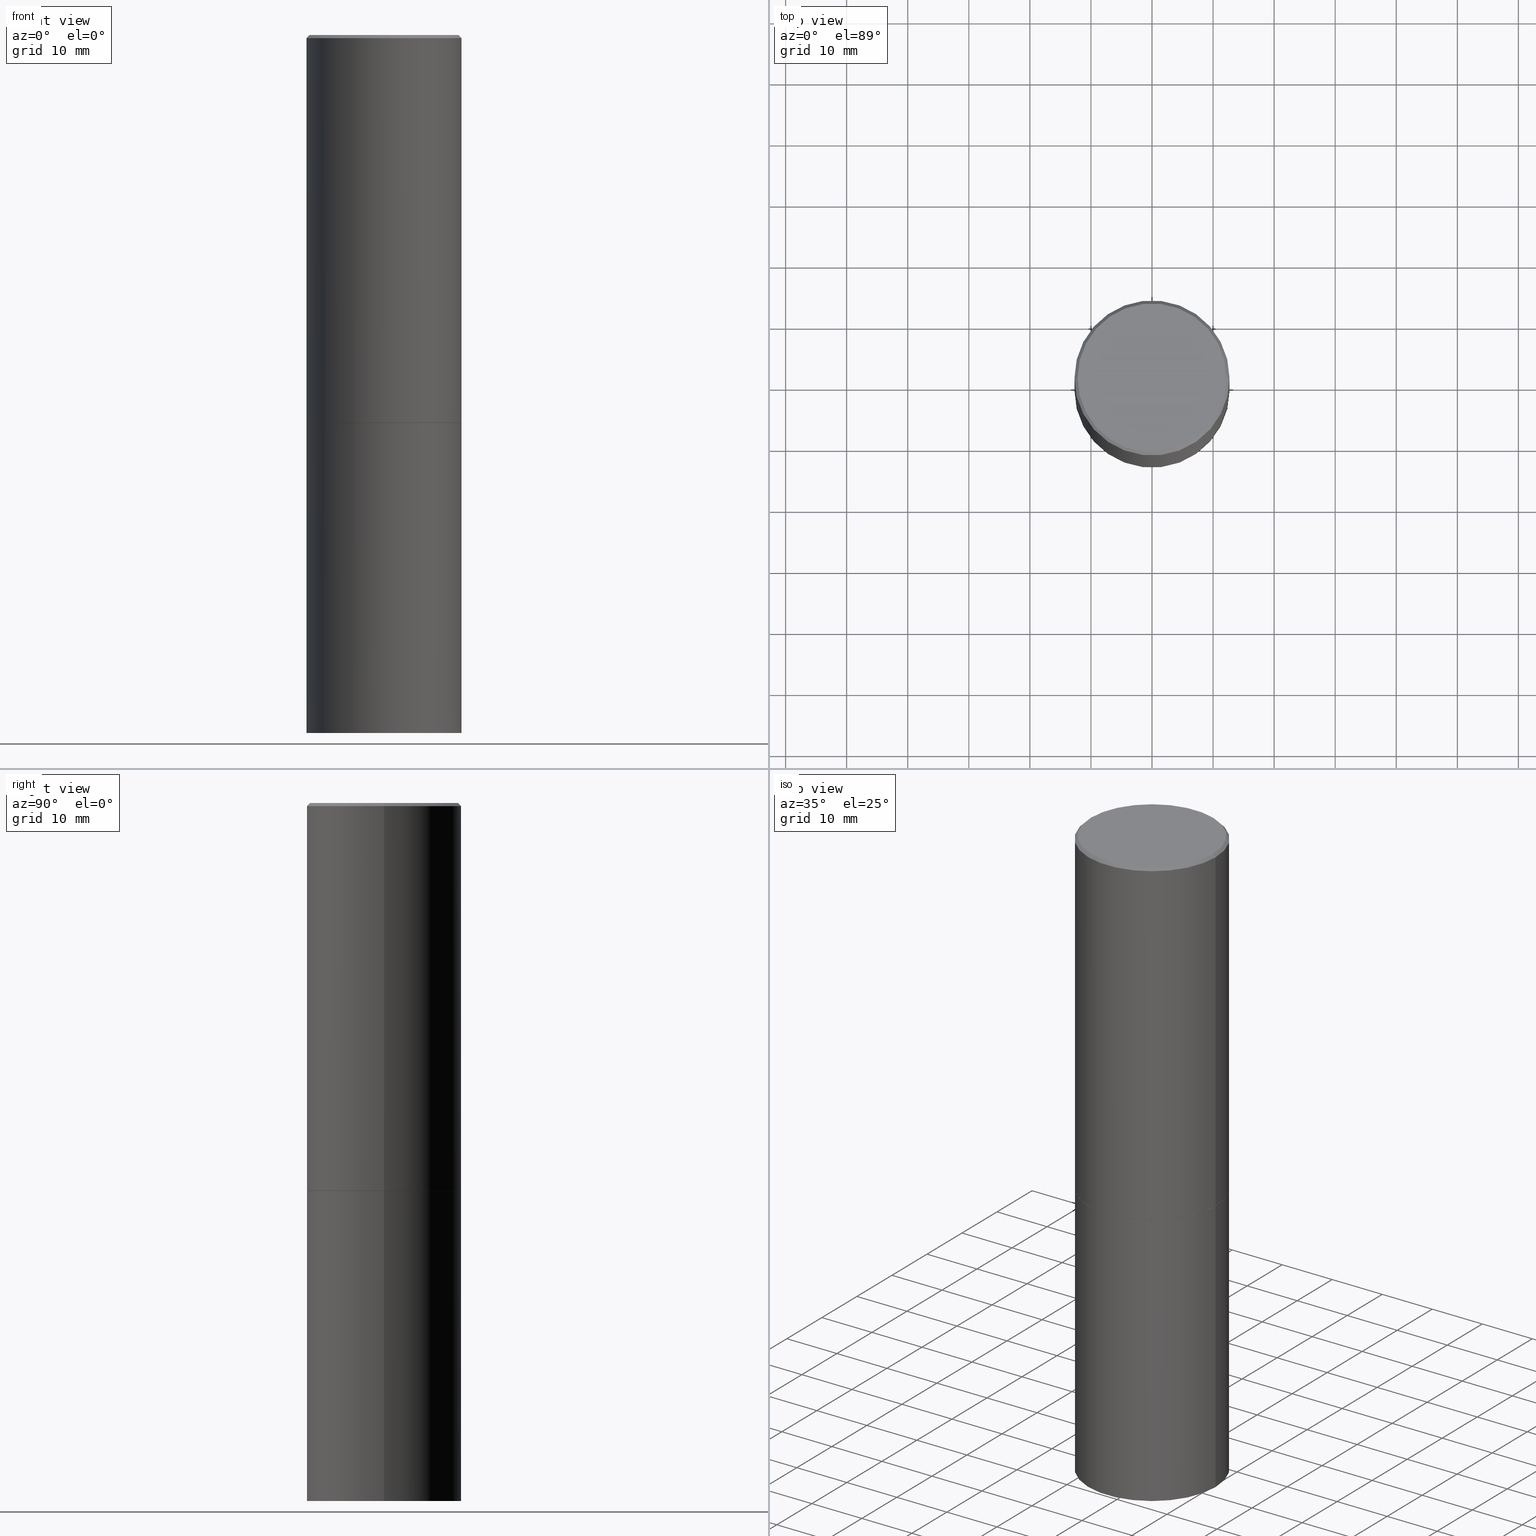
[diagram: canonical four-view strip — front | top / right | iso, engineering-drawing reading convention]
A machine part, canonical four-view strip (front | top / right | iso — engineering-drawing reading convention). The complete STEP part file that produces these views, byte-faithful:
ISO-10303-21;
HEADER;
FILE_DESCRIPTION (( 'STEP AP203' ),
    '1' );
FILE_NAME ('32048.STEP',
    '2024-02-27T14:39:32',
    ( '' ),
    ( '' ),
    'SwSTEP 2.0',
    'SolidWorks 2023',
    '' );
FILE_SCHEMA (( 'CONFIG_CONTROL_DESIGN' ));
ENDSEC;

DATA;
#1 = EDGE_CURVE ( 'NONE', #30, #9, #127, .T. ) ;
#2 = DIRECTION ( 'NONE',  ( 1.000000000000000000, -6.982962677686266711E-15, 4.876176775795935793E-29 ) ) ;
#3 = CARTESIAN_POINT ( 'NONE',  ( 3.491481338843194098E-15, 0.4999999999999912292, -2.500000000000001776 ) ) ;
#4 = AXIS2_PLACEMENT_3D ( 'NONE', #29, #66, #61 ) ;
#5 = DIRECTION ( 'NONE',  ( 0.7071067811866199593, -2.468850131083015945E-15, 0.7071067811864750752 ) ) ;
#6 = PRODUCT_DEFINITION_SHAPE ( 'NONE', 'NONE',  #199 ) ;
#7 = CARTESIAN_POINT ( 'NONE',  ( -0.5000000000000000000, -8.667471007150509990E-15, -2.500000000000000000 ) ) ;
#8 = PERSON_AND_ORGANIZATION_ROLE ( 'design_owner' ) ;
#9 = VERTEX_POINT ( 'NONE', #233 ) ;
#10 = COORDINATED_UNIVERSAL_TIME_OFFSET ( 5, 0, .BEHIND. ) ;
#11 = CIRCLE ( 'NONE', #154, 0.5000000000000000000 ) ;
#12 = EDGE_LOOP ( 'NONE', ( #17, #357 ) ) ;
#13 = PERSON_AND_ORGANIZATION ( #36, #348 ) ;
#14 = CARTESIAN_POINT ( 'NONE',  ( 6.113672015462842613E-29, -8.728703347107864943E-15, -2.500000000000000000 ) ) ;
#15 = ORIENTED_EDGE ( 'NONE', *, *, #219, .T. ) ;
#16 = CARTESIAN_POINT ( 'NONE',  ( -0.4799999999999996492, 3.386736898677836436E-15, 1.280553747027767124E-17 ) ) ;
#17 = ORIENTED_EDGE ( 'NONE', *, *, #171, .T. ) ;
#18 = AXIS2_PLACEMENT_3D ( 'NONE', #194, #113, #65 ) ;
#19 = CARTESIAN_POINT ( 'NONE',  ( 6.111226546656657010E-29, -8.725211865769021935E-15, -2.499000000000000110 ) ) ;
#20 = CARTESIAN_POINT ( 'NONE',  ( 0.5000000000000000000, -1.222018468595099830E-14, -2.500000000000000000 ) ) ;
#21 = EDGE_LOOP ( 'NONE', ( #283, #89 ) ) ;
#22 = CARTESIAN_POINT ( 'NONE',  ( -0.4989999999999999991, -5.183095095664965021E-15, -2.500000000000000000 ) ) ;
#23 = EDGE_CURVE ( 'NONE', #9, #45, #328, .T. ) ;
#24 = CC_DESIGN_APPROVAL ( #289, ( #199 ) ) ;
#25 = DIRECTION ( 'NONE',  ( -2.445468806185136877E-29, 3.491481338843145188E-15, 1.000000000000000000 ) ) ;
#26 = DIRECTION ( 'NONE',  ( 1.000000000000000000, 0.000000000000000000, 0.000000000000000000 ) ) ;
#27 = DIRECTION ( 'NONE',  ( -2.445468806185136597E-29, 3.491481338843145583E-15, 1.000000000000000000 ) ) ;
#28 = CC_DESIGN_PERSON_AND_ORGANIZATION_ASSIGNMENT ( #201, #350, ( #280 ) ) ;
#29 = CARTESIAN_POINT ( 'NONE',  ( 6.113672015462842613E-29, -8.728703347107864943E-15, -2.500000000000000000 ) ) ;
#30 = VERTEX_POINT ( 'NONE', #207 ) ;
#31 = CC_DESIGN_PERSON_AND_ORGANIZATION_ASSIGNMENT ( #312, #122, ( #199 ) ) ;
#32 = VECTOR ( 'NONE', #107, 39.37007874015748143 ) ;
#33 = CONICAL_SURFACE ( 'NONE', #99, 0.4999999999999996669, 0.7853981633974452814 ) ;
#34 = PERSON_AND_ORGANIZATION ( #36, #348 ) ;
#35 = LOCAL_TIME ( 9, 39, 32.00000000000000000, #256 ) ;
#36 = PERSON ( 'UNSPECIFIED', 'UNSPECIFIED', 'UNSPECIFIED', ('UNSPECIFIED'), ('UNSPECIFIED'), ('UNSPECIFIED') ) ;
#37 = CARTESIAN_POINT ( 'NONE',  ( 0.4989999999999999991, -1.221320172327331228E-14, -2.500000000000000000 ) ) ;
#38 = APPROVAL_ROLE ( '' ) ;
#39 = EDGE_CURVE ( 'NONE', #137, #102, #69, .T. ) ;
#40 = EDGE_LOOP ( 'NONE', ( #150, #68, #359, #82 ) ) ;
#41 = PERSON_AND_ORGANIZATION ( #36, #348 ) ;
#42 = EDGE_CURVE ( 'NONE', #102, #30, #74, .T. ) ;
#43 = EDGE_CURVE ( 'NONE', #30, #130, #11, .T. ) ;
#44 = ORIENTED_EDGE ( 'NONE', *, *, #277, .T. ) ;
#45 = VERTEX_POINT ( 'NONE', #235 ) ;
#46 = COORDINATED_UNIVERSAL_TIME_OFFSET ( 5, 0, .BEHIND. ) ;
#47 = AXIS2_PLACEMENT_3D ( 'NONE', #227, #314, #229 ) ;
#48 = CARTESIAN_POINT ( 'NONE',  ( 0.000000000000000000, 0.000000000000000000, 0.000000000000000000 ) ) ;
#49 = APPROVAL_ROLE ( '' ) ;
#50 = ORIENTED_EDGE ( 'NONE', *, *, #171, .F. ) ;
#51 = DIRECTION ( 'NONE',  ( -2.445468806185136597E-29, 3.491481338843145583E-15, 1.000000000000000000 ) ) ;
#52 = VERTEX_POINT ( 'NONE', #7 ) ;
#53 = UNCERTAINTY_MEASURE_WITH_UNIT (LENGTH_MEASURE( 1.000000000000000082E-05 ), #249, 'distance_accuracy_value', 'NONE');
#54 = DIRECTION ( 'NONE',  ( -1.000000000000000000, 6.982962677686266711E-15, 0.000000000000000000 ) ) ;
#55 = EDGE_LOOP ( 'NONE', ( #242, #293 ) ) ;
#56 = AXIS2_PLACEMENT_3D ( 'NONE', #170, #173, #175 ) ;
#57 = FACE_OUTER_BOUND ( 'NONE', #200, .T. ) ;
#58 = ORIENTED_EDGE ( 'NONE', *, *, #277, .F. ) ;
#59 = DIRECTION ( 'NONE',  ( 2.445468806185136597E-29, -3.491481338843145583E-15, -1.000000000000000000 ) ) ;
#60 = EDGE_CURVE ( 'NONE', #130, #45, #278, .T. ) ;
#61 = DIRECTION ( 'NONE',  ( 1.000000000000000000, -6.982962677686269077E-15, 0.000000000000000000 ) ) ;
#62 = ADVANCED_FACE ( 'NONE', ( #124 ), #261, .T. ) ;
#63 = FACE_OUTER_BOUND ( 'NONE', #112, .T. ) ;
#64 = ADVANCED_BREP_SHAPE_REPRESENTATION ( '32048', ( #307, #85, #342 ), #355 ) ;
#65 = DIRECTION ( 'NONE',  ( -1.000000000000000000, 6.982962677686265922E-15, -4.876176775795935793E-29 ) ) ;
#66 = DIRECTION ( 'NONE',  ( -2.445468806185136597E-29, 3.491481338843145583E-15, 1.000000000000000000 ) ) ;
#67 = PRODUCT ( '32048', '32048', '', ( #337 ) ) ;
#68 = ORIENTED_EDGE ( 'NONE', *, *, #123, .T. ) ;
#69 = CIRCLE ( 'NONE', #115, 0.4989999999999999991 ) ;
#70 = CIRCLE ( 'NONE', #232, 0.5000000000000000000 ) ;
#71 = DIRECTION ( 'NONE',  ( 2.438088387897960049E-29, -3.491481338843145188E-15, -1.000000000000000000 ) ) ;
#72 = COORDINATED_UNIVERSAL_TIME_OFFSET ( 5, 0, .BEHIND. ) ;
#73 = CARTESIAN_POINT ( 'NONE',  ( 1.100460962783311469E-28, -1.571166602479415690E-14, -4.500000000000000000 ) ) ;
#74 = LINE ( 'NONE', #37, #204 ) ;
#75 = CALENDAR_DATE ( 2024, 27, 2 ) ;
#76 = DIRECTION ( 'NONE',  ( -2.445468806185136597E-29, 3.491481338843145583E-15, 1.000000000000000000 ) ) ;
#77 = APPROVAL_DATE_TIME ( #149, #263 ) ;
#78 = CIRCLE ( 'NONE', #287, 0.5000000000000000000 ) ;
#79 = ORIENTED_EDGE ( 'NONE', *, *, #276, .F. ) ;
#80 = DIRECTION ( 'NONE',  ( 2.445468806185136597E-29, -3.491481338843145583E-15, -1.000000000000000000 ) ) ;
#81 = DIRECTION ( 'NONE',  ( -2.438088387897960049E-29, 3.491481338843145188E-15, 1.000000000000000000 ) ) ;
#82 = ORIENTED_EDGE ( 'NONE', *, *, #321, .F. ) ;
#83 = CARTESIAN_POINT ( 'NONE',  ( 0.000000000000000000, 0.000000000000000000, 0.000000000000000000 ) ) ;
#84 = DIRECTION ( 'NONE',  ( -2.445468806185136597E-29, 3.491481338843145583E-15, 1.000000000000000000 ) ) ;
#85 = MANIFOLD_SOLID_BREP ( 'Body-Move/Copy2[2]', #217 ) ;
#86 = AXIS2_PLACEMENT_3D ( 'NONE', #273, #27, #274 ) ;
#87 = ADVANCED_FACE ( 'NONE', ( #251 ), #94, .F. ) ;
#88 = FACE_OUTER_BOUND ( 'NONE', #255, .T. ) ;
#89 = ORIENTED_EDGE ( 'NONE', *, *, #109, .F. ) ;
#90 = DIRECTION ( 'NONE',  ( -2.445468806185136597E-29, 3.491481338843145583E-15, 1.000000000000000000 ) ) ;
#91 = FACE_OUTER_BOUND ( 'NONE', #336, .T. ) ;
#92 = LOCAL_TIME ( 9, 39, 32.00000000000000000, #46 ) ;
#93 = ORIENTED_EDGE ( 'NONE', *, *, #248, .F. ) ;
#94 = PLANE ( 'NONE',  #306 ) ;
#95 = DATE_AND_TIME ( #228, #272 ) ;
#96 = ORIENTED_EDGE ( 'NONE', *, *, #42, .F. ) ;
#97 = COORDINATED_UNIVERSAL_TIME_OFFSET ( 5, 0, .BEHIND. ) ;
#98 = AXIS2_PLACEMENT_3D ( 'NONE', #14, #81, #187 ) ;
#99 = AXIS2_PLACEMENT_3D ( 'NONE', #166, #80, #54 ) ;
#100 = CARTESIAN_POINT ( 'NONE',  ( -3.131554243005659264E-46, 4.471029511141341874E-32, 1.280553747030123384E-17 ) ) ;
#101 = CC_DESIGN_PERSON_AND_ORGANIZATION_ASSIGNMENT ( #41, #234, ( #225 ) ) ;
#102 = VERTEX_POINT ( 'NONE', #311 ) ;
#103 = DIRECTION ( 'NONE',  ( -0.7071067811865453523, 2.468850131082234184E-15, -0.7071067811865496822 ) ) ;
#104 = DIRECTION ( 'NONE',  ( 1.000000000000000000, -6.982962677686265133E-15, 0.000000000000000000 ) ) ;
#105 = CONICAL_SURFACE ( 'NONE', #147, 0.4999999999999996669, 0.7853981633974452814 ) ;
#106 = EDGE_LOOP ( 'NONE', ( #202, #258 ) ) ;
#107 = DIRECTION ( 'NONE',  ( -2.445468806185136877E-29, 3.491481338843145188E-15, 1.000000000000000000 ) ) ;
#108 = CARTESIAN_POINT ( 'NONE',  ( -0.5000000000000000000, -8.667471007150509990E-15, -4.500000000000000000 ) ) ;
#109 = EDGE_CURVE ( 'NONE', #246, #214, #111, .T. ) ;
#110 = DIRECTION ( 'NONE',  ( 1.000000000000000000, -6.982962677686266711E-15, 0.000000000000000000 ) ) ;
#111 = CIRCLE ( 'NONE', #341, 0.5000000000000000000 ) ;
#112 = EDGE_LOOP ( 'NONE', ( #79, #114, #323, #93 ) ) ;
#113 = DIRECTION ( 'NONE',  ( 2.438088387897960049E-29, -3.491481338843145188E-15, -1.000000000000000000 ) ) ;
#114 = ORIENTED_EDGE ( 'NONE', *, *, #39, .T. ) ;
#115 = AXIS2_PLACEMENT_3D ( 'NONE', #176, #316, #279 ) ;
#116 = CC_DESIGN_APPROVAL ( #140, ( #280 ) ) ;
#117 =( NAMED_UNIT ( * ) PLANE_ANGLE_UNIT ( ) SI_UNIT ( $, .RADIAN. ) );
#118 = EDGE_CURVE ( 'NONE', #148, #193, #354, .T. ) ;
#119 = APPROVAL_PERSON_ORGANIZATION ( #185, #140, #209 ) ;
#120 = DIRECTION ( 'NONE',  ( -2.445468806185136597E-29, 3.491481338843145583E-15, 1.000000000000000000 ) ) ;
#121 = DIRECTION ( 'NONE',  ( -2.445468806185136877E-29, 3.491481338843145188E-15, 1.000000000000000000 ) ) ;
#122 = PERSON_AND_ORGANIZATION_ROLE ( 'creator' ) ;
#123 = EDGE_CURVE ( 'NONE', #246, #52, #189, .T. ) ;
#124 = FACE_OUTER_BOUND ( 'NONE', #132, .T. ) ;
#125 = DATE_AND_TIME ( #310, #92 ) ;
#126 = ADVANCED_FACE ( 'NONE', ( #134 ), #192, .T. ) ;
#127 = LINE ( 'NONE', #309, #260 ) ;
#128 = CARTESIAN_POINT ( 'NONE',  ( 4.890937612370298557E-31, -6.982962677686327354E-17, -0.02000000000000010103 ) ) ;
#129 = FACE_OUTER_BOUND ( 'NONE', #55, .T. ) ;
#130 = VERTEX_POINT ( 'NONE', #317 ) ;
#131 = CARTESIAN_POINT ( 'NONE',  ( -3.131554243005659264E-46, 4.471029511141341874E-32, 1.280553747030123384E-17 ) ) ;
#132 = EDGE_LOOP ( 'NONE', ( #145, #332, #188, #198 ) ) ;
#133 = CARTESIAN_POINT ( 'NONE',  ( 0.5000000000000000000, -1.920314736363729025E-14, -4.500000000000000000 ) ) ;
#134 = FACE_OUTER_BOUND ( 'NONE', #40, .T. ) ;
#135 = DESIGN_CONTEXT ( 'detailed design', #224, 'design' ) ;
#136 = DIRECTION ( 'NONE',  ( -0.7071067811866199593, 7.493145998870616062E-15, 0.7071067811864750752 ) ) ;
#137 = VERTEX_POINT ( 'NONE', #237 ) ;
#138 = CIRCLE ( 'NONE', #4, 0.5000000000000000000 ) ;
#139 =( LENGTH_UNIT ( ) NAMED_UNIT ( * ) SI_UNIT ( $, .METRE. ) );
#140 = APPROVAL ( #259, 'UNSPECIFIED' ) ;
#141 = LENGTH_MEASURE_WITH_UNIT ( LENGTH_MEASURE( 0.02539999999999999897 ), #139 );
#142 = PLANE ( 'NONE',  #18 ) ;
#143 = CIRCLE ( 'NONE', #190, 0.4999999999999996669 ) ;
#144 = ADVANCED_FACE ( 'NONE', ( #216 ), #157, .T. ) ;
#145 = ORIENTED_EDGE ( 'NONE', *, *, #60, .F. ) ;
#146 = VECTOR ( 'NONE', #121, 39.37007874015748143 ) ;
#147 = AXIS2_PLACEMENT_3D ( 'NONE', #290, #59, #353 ) ;
#148 = VERTEX_POINT ( 'NONE', #326 ) ;
#149 = DATE_AND_TIME ( #230, #35 ) ;
#150 = ORIENTED_EDGE ( 'NONE', *, *, #344, .T. ) ;
#151 = PERSON_AND_ORGANIZATION ( #36, #348 ) ;
#152 = DIRECTION ( 'NONE',  ( -2.445468806185136877E-29, 3.491481338843145188E-15, 1.000000000000000000 ) ) ;
#153 = APPROVAL_DATE_TIME ( #95, #289 ) ;
#154 = AXIS2_PLACEMENT_3D ( 'NONE', #181, #120, #285 ) ;
#155 = CARTESIAN_POINT ( 'NONE',  ( -0.4999999999999998335, 3.552713678800499746E-15, -2.459467545127452330E-29 ) ) ;
#156 = EDGE_CURVE ( 'NONE', #193, #45, #298, .T. ) ;
#157 = CYLINDRICAL_SURFACE ( 'NONE', #168, 0.4999999999999998335 ) ;
#158 = CALENDAR_DATE ( 2024, 27, 2 ) ;
#159 = ORIENTED_EDGE ( 'NONE', *, *, #321, .T. ) ;
#160 = DIRECTION ( 'NONE',  ( -2.445468806185136597E-29, 3.491481338843145583E-15, 1.000000000000000000 ) ) ;
#161 = ORIENTED_EDGE ( 'NONE', *, *, #43, .T. ) ;
#162 = CARTESIAN_POINT ( 'NONE',  ( -0.5000000000000000000, 3.552713678800500929E-15, -2.459467545127452891E-29 ) ) ;
#163 = CIRCLE ( 'NONE', #250, 0.4799999999999996492 ) ;
#164 = CARTESIAN_POINT ( 'NONE',  ( 6.113672015462842613E-29, -8.728703347107864943E-15, -2.500000000000000000 ) ) ;
#165 = ORIENTED_EDGE ( 'NONE', *, *, #268, .T. ) ;
#166 = CARTESIAN_POINT ( 'NONE',  ( 4.890937612370298557E-31, -6.982962677686327354E-17, -0.02000000000000010103 ) ) ;
#167 = CYLINDRICAL_SURFACE ( 'NONE', #303, 0.5000000000000000000 ) ;
#168 = AXIS2_PLACEMENT_3D ( 'NONE', #244, #160, #215 ) ;
#169 = LINE ( 'NONE', #301, #222 ) ;
#170 = CARTESIAN_POINT ( 'NONE',  ( 1.100460962783311469E-28, -1.571166602479415690E-14, -4.500000000000000000 ) ) ;
#171 = EDGE_CURVE ( 'NONE', #193, #148, #163, .T. ) ;
#172 = ADVANCED_FACE ( 'NONE', ( #129 ), #262, .F. ) ;
#173 = DIRECTION ( 'NONE',  ( -2.445468806185136597E-29, 3.491481338843145583E-15, 1.000000000000000000 ) ) ;
#174 = VECTOR ( 'NONE', #136, 39.37007874015748143 ) ;
#175 = DIRECTION ( 'NONE',  ( 1.000000000000000000, -6.982962677686266711E-15, 0.000000000000000000 ) ) ;
#176 = CARTESIAN_POINT ( 'NONE',  ( 6.113672015462842613E-29, -8.728703347107864943E-15, -2.500000000000000000 ) ) ;
#177 = DIRECTION ( 'NONE',  ( -2.445468806185136597E-29, 3.491481338843145583E-15, 1.000000000000000000 ) ) ;
#178 = SECURITY_CLASSIFICATION_LEVEL ( 'unclassified' ) ;
#179 = APPROVAL_PERSON_ORGANIZATION ( #13, #289, #38 ) ;
#180 = DIRECTION ( 'NONE',  ( -2.445468806185136597E-29, 3.491481338843145583E-15, 1.000000000000000000 ) ) ;
#181 = CARTESIAN_POINT ( 'NONE',  ( 6.111226546656657010E-29, -8.725211865769021935E-15, -2.499000000000000110 ) ) ;
#182 = APPLICATION_PROTOCOL_DEFINITION ( 'international standard', 'config_control_design', 1994, #224 ) ;
#183 = AXIS2_PLACEMENT_3D ( 'NONE', #48, #76, #358 ) ;
#184 = DIRECTION ( 'NONE',  ( -1.000000000000000000, 6.982962677686265922E-15, -4.876176775795935793E-29 ) ) ;
#185 = PERSON_AND_ORGANIZATION ( #36, #348 ) ;
#186 = DIRECTION ( 'NONE',  ( 1.000000000000000000, -6.982962677686267499E-15, 4.876036955247132767E-29 ) ) ;
#187 = DIRECTION ( 'NONE',  ( 1.000000000000000000, -6.982962677686265922E-15, 4.876176775795935793E-29 ) ) ;
#188 = ORIENTED_EDGE ( 'NONE', *, *, #1, .T. ) ;
#189 = LINE ( 'NONE', #162, #32 ) ;
#190 = AXIS2_PLACEMENT_3D ( 'NONE', #356, #84, #110 ) ;
#191 = CIRCLE ( 'NONE', #196, 0.4989999999999999991 ) ;
#192 = CYLINDRICAL_SURFACE ( 'NONE', #183, 0.5000000000000000000 ) ;
#193 = VERTEX_POINT ( 'NONE', #16 ) ;
#194 = CARTESIAN_POINT ( 'NONE',  ( 3.491481338843243007E-15, 0.4999999999999842903, -4.500000000000001776 ) ) ;
#195 = AXIS2_PLACEMENT_3D ( 'NONE', #100, #324, #288 ) ;
#196 = AXIS2_PLACEMENT_3D ( 'NONE', #269, #210, #292 ) ;
#197 = VECTOR ( 'NONE', #340, 39.37007874015748143 ) ;
#198 = ORIENTED_EDGE ( 'NONE', *, *, #219, .F. ) ;
#199 = PRODUCT_DEFINITION ( 'UNKNOWN', '', #225, #135 ) ;
#200 = EDGE_LOOP ( 'NONE', ( #165, #284, #220, #96 ) ) ;
#201 = PERSON_AND_ORGANIZATION ( #36, #348 ) ;
#202 = ORIENTED_EDGE ( 'NONE', *, *, #339, .T. ) ;
#203 = SHAPE_DEFINITION_REPRESENTATION ( #6, #64 ) ;
#204 = VECTOR ( 'NONE', #5, 39.37007874015748143 ) ;
#205 = PERSON_AND_ORGANIZATION_ROLE ( 'creator' ) ;
#206 = ADVANCED_FACE ( 'NONE', ( #264 ), #361, .F. ) ;
#207 = CARTESIAN_POINT ( 'NONE',  ( 0.5000000000000000000, -1.221669320461215371E-14, -2.499000000000000110 ) ) ;
#208 = CARTESIAN_POINT ( 'NONE',  ( 0.4999999999999996669, -3.500078625662626713E-15, -0.02000000000000010103 ) ) ;
#209 = APPROVAL_ROLE ( '' ) ;
#210 = DIRECTION ( 'NONE',  ( -2.445468806185136597E-29, 3.491481338843145583E-15, 1.000000000000000000 ) ) ;
#211 = VERTEX_POINT ( 'NONE', #20 ) ;
#212 = DIRECTION ( 'NONE',  ( 1.000000000000000000, -6.982962677686266711E-15, 0.000000000000000000 ) ) ;
#213 = CC_DESIGN_PERSON_AND_ORGANIZATION_ASSIGNMENT ( #236, #205, ( #225 ) ) ;
#214 = VERTEX_POINT ( 'NONE', #133 ) ;
#215 = DIRECTION ( 'NONE',  ( 1.000000000000000000, -6.982962677686267499E-15, 4.876176775795936353E-29 ) ) ;
#216 = FACE_OUTER_BOUND ( 'NONE', #362, .T. ) ;
#217 = CLOSED_SHELL ( 'NONE', ( #223, #144, #239, #271, #62, #366, #172, #206 ) ) ;
#218 = ORIENTED_EDGE ( 'NONE', *, *, #156, .T. ) ;
#219 = EDGE_CURVE ( 'NONE', #45, #9, #143, .T. ) ;
#220 = ORIENTED_EDGE ( 'NONE', *, *, #43, .F. ) ;
#221 = DIRECTION ( 'NONE',  ( -2.445468806185136597E-29, 3.491481338843145583E-15, 1.000000000000000000 ) ) ;
#222 = VECTOR ( 'NONE', #25, 39.37007874015748143 ) ;
#223 = ADVANCED_FACE ( 'NONE', ( #57 ), #334, .T. ) ;
#224 = APPLICATION_CONTEXT ( 'configuration controlled 3d designs of mechanical parts and assemblies' ) ;
#225 = PRODUCT_DEFINITION_FORMATION_WITH_SPECIFIED_SOURCE ( 'ANY', '', #67, .NOT_KNOWN. ) ;
#226 = CC_DESIGN_DATE_AND_TIME_ASSIGNMENT ( #254, #286, ( #199 ) ) ;
#227 = CARTESIAN_POINT ( 'NONE',  ( 0.000000000000000000, 0.000000000000000000, 0.000000000000000000 ) ) ;
#228 = CALENDAR_DATE ( 2024, 27, 2 ) ;
#229 = DIRECTION ( 'NONE',  ( 1.000000000000000000, -6.982962677686267499E-15, 4.876176775795936353E-29 ) ) ;
#230 = CALENDAR_DATE ( 2024, 27, 2 ) ;
#231 = APPROVAL_STATUS ( 'not_yet_approved' ) ;
#232 = AXIS2_PLACEMENT_3D ( 'NONE', #333, #221, #304 ) ;
#233 = CARTESIAN_POINT ( 'NONE',  ( 0.4999999999999996669, -3.500078625662626713E-15, -0.02000000000000010103 ) ) ;
#234 = PERSON_AND_ORGANIZATION_ROLE ( 'design_supplier' ) ;
#235 = CARTESIAN_POINT ( 'NONE',  ( -0.4999999999999996669, 3.421651712066267691E-15, -0.02000000000000010103 ) ) ;
#236 = PERSON_AND_ORGANIZATION ( #36, #348 ) ;
#237 = CARTESIAN_POINT ( 'NONE',  ( -0.4989999999999999991, -5.177796641316743408E-15, -2.500000000000000000 ) ) ;
#238 = VECTOR ( 'NONE', #103, 39.37007874015748143 ) ;
#239 = ADVANCED_FACE ( 'NONE', ( #88 ), #105, .T. ) ;
#240 = CC_DESIGN_APPROVAL ( #263, ( #225 ) ) ;
#241 = DIRECTION ( 'NONE',  ( 2.438088387897960049E-29, -3.491481338843145188E-15, -1.000000000000000000 ) ) ;
#242 = ORIENTED_EDGE ( 'NONE', *, *, #268, .F. ) ;
#243 = CARTESIAN_POINT ( 'NONE',  ( 3.351822085289405181E-15, 0.4799999999999996492, -1.669508273909558064E-15 ) ) ;
#244 = CARTESIAN_POINT ( 'NONE',  ( 0.000000000000000000, 0.000000000000000000, 0.000000000000000000 ) ) ;
#245 = APPLICATION_CONTEXT ( 'configuration controlled 3d designs of mechanical parts and assemblies' ) ;
#246 = VERTEX_POINT ( 'NONE', #108 ) ;
#247 = ORIENTED_EDGE ( 'NONE', *, *, #109, .T. ) ;
#248 = EDGE_CURVE ( 'NONE', #130, #30, #78, .T. ) ;
#249 =( CONVERSION_BASED_UNIT ( 'INCH', #141 ) LENGTH_UNIT ( ) NAMED_UNIT ( #300 ) );
#250 = AXIS2_PLACEMENT_3D ( 'NONE', #131, #267, #186 ) ;
#251 = FACE_OUTER_BOUND ( 'NONE', #106, .T. ) ;
#252 = AXIS2_PLACEMENT_3D ( 'NONE', #164, #329, #212 ) ;
#253 = ORIENTED_EDGE ( 'NONE', *, *, #23, .F. ) ;
#254 = DATE_AND_TIME ( #75, #275 ) ;
#255 = EDGE_LOOP ( 'NONE', ( #364, #44, #297, #346 ) ) ;
#256 = COORDINATED_UNIVERSAL_TIME_OFFSET ( 5, 0, .BEHIND. ) ;
#257 = PRODUCT_RELATED_PRODUCT_CATEGORY ( 'detail', '', ( #67 ) ) ;
#258 = ORIENTED_EDGE ( 'NONE', *, *, #351, .T. ) ;
#259 = APPROVAL_STATUS ( 'not_yet_approved' ) ;
#260 = VECTOR ( 'NONE', #152, 39.37007874015748143 ) ;
#261 = CYLINDRICAL_SURFACE ( 'NONE', #47, 0.4999999999999998335 ) ;
#262 = PLANE ( 'NONE',  #98 ) ;
#263 = APPROVAL ( #318, 'UNSPECIFIED' ) ;
#264 = FACE_OUTER_BOUND ( 'NONE', #12, .T. ) ;
#265 = ORIENTED_EDGE ( 'NONE', *, *, #351, .F. ) ;
#266 = CONICAL_SURFACE ( 'NONE', #86, 0.4989999999999999991, 0.7853981633975507526 ) ;
#267 = DIRECTION ( 'NONE',  ( -2.445468806185136597E-29, 3.491481338843145583E-15, 1.000000000000000000 ) ) ;
#268 = EDGE_CURVE ( 'NONE', #102, #137, #191, .T. ) ;
#269 = CARTESIAN_POINT ( 'NONE',  ( 6.113672015462842613E-29, -8.728703347107864943E-15, -2.500000000000000000 ) ) ;
#270 = LINE ( 'NONE', #22, #174 ) ;
#271 = ADVANCED_FACE ( 'NONE', ( #322 ), #33, .T. ) ;
#272 = LOCAL_TIME ( 9, 39, 32.00000000000000000, #10 ) ;
#273 = CARTESIAN_POINT ( 'NONE',  ( 6.113672015462842613E-29, -8.728703347107864943E-15, -2.500000000000000000 ) ) ;
#274 = DIRECTION ( 'NONE',  ( 1.000000000000000000, -6.982962677686266711E-15, 0.000000000000000000 ) ) ;
#275 = LOCAL_TIME ( 9, 39, 32.00000000000000000, #72 ) ;
#276 = EDGE_CURVE ( 'NONE', #137, #130, #270, .T. ) ;
#277 = EDGE_CURVE ( 'NONE', #148, #9, #352, .T. ) ;
#278 = LINE ( 'NONE', #155, #146 ) ;
#279 = DIRECTION ( 'NONE',  ( 1.000000000000000000, -6.982962677686266711E-15, 0.000000000000000000 ) ) ;
#280 = SECURITY_CLASSIFICATION ( '', '', #178 ) ;
#281 = DIRECTION ( 'NONE',  ( 1.000000000000000000, -6.982962677686266711E-15, 0.000000000000000000 ) ) ;
#282 = CC_DESIGN_PERSON_AND_ORGANIZATION_ASSIGNMENT ( #34, #8, ( #67 ) ) ;
#283 = ORIENTED_EDGE ( 'NONE', *, *, #344, .F. ) ;
#284 = ORIENTED_EDGE ( 'NONE', *, *, #276, .T. ) ;
#285 = DIRECTION ( 'NONE',  ( 1.000000000000000000, -6.982962677686265133E-15, 0.000000000000000000 ) ) ;
#286 = DATE_TIME_ROLE ( 'creation_date' ) ;
#287 = AXIS2_PLACEMENT_3D ( 'NONE', #19, #51, #104 ) ;
#288 = DIRECTION ( 'NONE',  ( 1.000000000000000000, -6.982962677686267499E-15, 4.876036955247132767E-29 ) ) ;
#289 = APPROVAL ( #231, 'UNSPECIFIED' ) ;
#290 = CARTESIAN_POINT ( 'NONE',  ( 4.890937612370298557E-31, -6.982962677686327354E-17, -0.02000000000000010103 ) ) ;
#291 = EDGE_LOOP ( 'NONE', ( #58, #50, #218, #15 ) ) ;
#292 = DIRECTION ( 'NONE',  ( 1.000000000000000000, -6.982962677686266711E-15, 0.000000000000000000 ) ) ;
#293 = ORIENTED_EDGE ( 'NONE', *, *, #39, .F. ) ;
#294 = AXIS2_PLACEMENT_3D ( 'NONE', #243, #241, #184 ) ;
#295 = APPROVAL_PERSON_ORGANIZATION ( #151, #263, #49 ) ;
#296 = CARTESIAN_POINT ( 'NONE',  ( -0.4999999999999996669, 3.421651712066267691E-15, -0.02000000000000010103 ) ) ;
#297 = ORIENTED_EDGE ( 'NONE', *, *, #23, .T. ) ;
#298 = LINE ( 'NONE', #296, #238 ) ;
#299 = ORIENTED_EDGE ( 'NONE', *, *, #60, .T. ) ;
#300 = DIMENSIONAL_EXPONENTS ( 1.000000000000000000, 0.000000000000000000, 0.000000000000000000, 0.000000000000000000, 0.000000000000000000, 0.000000000000000000, 0.000000000000000000 ) ;
#301 = CARTESIAN_POINT ( 'NONE',  ( 0.5000000000000000000, -3.491481338843133355E-15, 2.438088387897967896E-29 ) ) ;
#302 = AXIS2_PLACEMENT_3D ( 'NONE', #128, #177, #349 ) ;
#303 = AXIS2_PLACEMENT_3D ( 'NONE', #305, #90, #2 ) ;
#304 = DIRECTION ( 'NONE',  ( 1.000000000000000000, -6.982962677686269077E-15, 0.000000000000000000 ) ) ;
#305 = CARTESIAN_POINT ( 'NONE',  ( 0.000000000000000000, 0.000000000000000000, 0.000000000000000000 ) ) ;
#306 = AXIS2_PLACEMENT_3D ( 'NONE', #3, #71, #343 ) ;
#307 = MANIFOLD_SOLID_BREP ( 'Body-Move/Copy2[1]', #319 ) ;
#308 = ADVANCED_FACE ( 'NONE', ( #331 ), #142, .T. ) ;
#309 = CARTESIAN_POINT ( 'NONE',  ( 0.4999999999999998335, -3.491481338843132566E-15, 2.438088387897967336E-29 ) ) ;
#310 = CALENDAR_DATE ( 2024, 27, 2 ) ;
#311 = CARTESIAN_POINT ( 'NONE',  ( 0.4989999999999999991, -1.221320172327331228E-14, -2.500000000000000000 ) ) ;
#312 = PERSON_AND_ORGANIZATION ( #36, #348 ) ;
#313 = CIRCLE ( 'NONE', #56, 0.5000000000000000000 ) ;
#314 = DIRECTION ( 'NONE',  ( -2.445468806185136597E-29, 3.491481338843145583E-15, 1.000000000000000000 ) ) ;
#315 = APPROVAL_DATE_TIME ( #347, #140 ) ;
#316 = DIRECTION ( 'NONE',  ( -2.445468806185136597E-29, 3.491481338843145583E-15, 1.000000000000000000 ) ) ;
#317 = CARTESIAN_POINT ( 'NONE',  ( -0.5000000000000000000, -8.448070674724411945E-16, -2.499000000000000110 ) ) ;
#318 = APPROVAL_STATUS ( 'not_yet_approved' ) ;
#319 = CLOSED_SHELL ( 'NONE', ( #126, #308, #87, #338 ) ) ;
#320 = CC_DESIGN_SECURITY_CLASSIFICATION ( #280, ( #225 ) ) ;
#321 = EDGE_CURVE ( 'NONE', #214, #211, #169, .T. ) ;
#322 = FACE_OUTER_BOUND ( 'NONE', #291, .T. ) ;
#323 = ORIENTED_EDGE ( 'NONE', *, *, #42, .T. ) ;
#324 = DIRECTION ( 'NONE',  ( -2.445468806185136597E-29, 3.491481338843145583E-15, 1.000000000000000000 ) ) ;
#325 = ORIENTED_EDGE ( 'NONE', *, *, #1, .F. ) ;
#326 = CARTESIAN_POINT ( 'NONE',  ( 0.4799999999999996492, -3.396558832296479732E-15, 1.280553747032483033E-17 ) ) ;
#327 = CC_DESIGN_DATE_AND_TIME_ASSIGNMENT ( #125, #345, ( #280 ) ) ;
#328 = CIRCLE ( 'NONE', #302, 0.4999999999999996669 ) ;
#329 = DIRECTION ( 'NONE',  ( -2.445468806185136597E-29, 3.491481338843145583E-15, 1.000000000000000000 ) ) ;
#330 = ORIENTED_EDGE ( 'NONE', *, *, #123, .F. ) ;
#331 = FACE_OUTER_BOUND ( 'NONE', #21, .T. ) ;
#332 = ORIENTED_EDGE ( 'NONE', *, *, #248, .T. ) ;
#333 = CARTESIAN_POINT ( 'NONE',  ( 6.113672015462842613E-29, -8.728703347107864943E-15, -2.500000000000000000 ) ) ;
#334 = CONICAL_SURFACE ( 'NONE', #252, 0.4989999999999999991, 0.7853981633975507526 ) ;
#335 = DIRECTION ( 'NONE',  ( 0.000000000000000000, 0.000000000000000000, 1.000000000000000000 ) ) ;
#336 = EDGE_LOOP ( 'NONE', ( #330, #247, #159, #265 ) ) ;
#337 = MECHANICAL_CONTEXT ( 'NONE', #245, 'mechanical' ) ;
#338 = ADVANCED_FACE ( 'NONE', ( #91 ), #167, .T. ) ;
#339 = EDGE_CURVE ( 'NONE', #211, #52, #138, .T. ) ;
#340 = DIRECTION ( 'NONE',  ( 0.7071067811865453523, -7.319954787623248157E-15, -0.7071067811865496822 ) ) ;
#341 = AXIS2_PLACEMENT_3D ( 'NONE', #73, #180, #281 ) ;
#342 = AXIS2_PLACEMENT_3D ( 'NONE', #83, #335, #26 ) ;
#343 = DIRECTION ( 'NONE',  ( -1.000000000000000000, 6.982962677686265922E-15, -4.876176775795935793E-29 ) ) ;
#344 = EDGE_CURVE ( 'NONE', #214, #246, #313, .T. ) ;
#345 = DATE_TIME_ROLE ( 'classification_date' ) ;
#346 = ORIENTED_EDGE ( 'NONE', *, *, #156, .F. ) ;
#347 = DATE_AND_TIME ( #158, #363 ) ;
#348 = ORGANIZATION ( 'UNSPECIFIED', 'UNSPECIFIED', '' ) ;
#349 = DIRECTION ( 'NONE',  ( 1.000000000000000000, -6.982962677686266711E-15, 0.000000000000000000 ) ) ;
#350 = PERSON_AND_ORGANIZATION_ROLE ( 'classification_officer' ) ;
#351 = EDGE_CURVE ( 'NONE', #52, #211, #70, .T. ) ;
#352 = LINE ( 'NONE', #208, #197 ) ;
#353 = DIRECTION ( 'NONE',  ( -1.000000000000000000, 6.982962677686266711E-15, 0.000000000000000000 ) ) ;
#354 = CIRCLE ( 'NONE', #195, 0.4799999999999996492 ) ;
#355 =( GEOMETRIC_REPRESENTATION_CONTEXT ( 3 ) GLOBAL_UNCERTAINTY_ASSIGNED_CONTEXT ( ( #53 ) ) GLOBAL_UNIT_ASSIGNED_CONTEXT ( ( #249, #117, #365 ) ) REPRESENTATION_CONTEXT ( 'NONE', 'WORKASPACE' ) );
#356 = CARTESIAN_POINT ( 'NONE',  ( 4.890937612370298557E-31, -6.982962677686327354E-17, -0.02000000000000010103 ) ) ;
#357 = ORIENTED_EDGE ( 'NONE', *, *, #118, .T. ) ;
#358 = DIRECTION ( 'NONE',  ( 1.000000000000000000, -6.982962677686266711E-15, 4.876176775795935793E-29 ) ) ;
#359 = ORIENTED_EDGE ( 'NONE', *, *, #339, .F. ) ;
#360 = APPLICATION_PROTOCOL_DEFINITION ( 'international standard', 'config_control_design', 1994, #245 ) ;
#361 = PLANE ( 'NONE',  #294 ) ;
#362 = EDGE_LOOP ( 'NONE', ( #161, #299, #253, #325 ) ) ;
#363 = LOCAL_TIME ( 9, 39, 32.00000000000000000, #97 ) ;
#364 = ORIENTED_EDGE ( 'NONE', *, *, #118, .F. ) ;
#365 =( NAMED_UNIT ( * ) SI_UNIT ( $, .STERADIAN. ) SOLID_ANGLE_UNIT ( ) );
#366 = ADVANCED_FACE ( 'NONE', ( #63 ), #266, .T. ) ;
ENDSEC;
END-ISO-10303-21;
